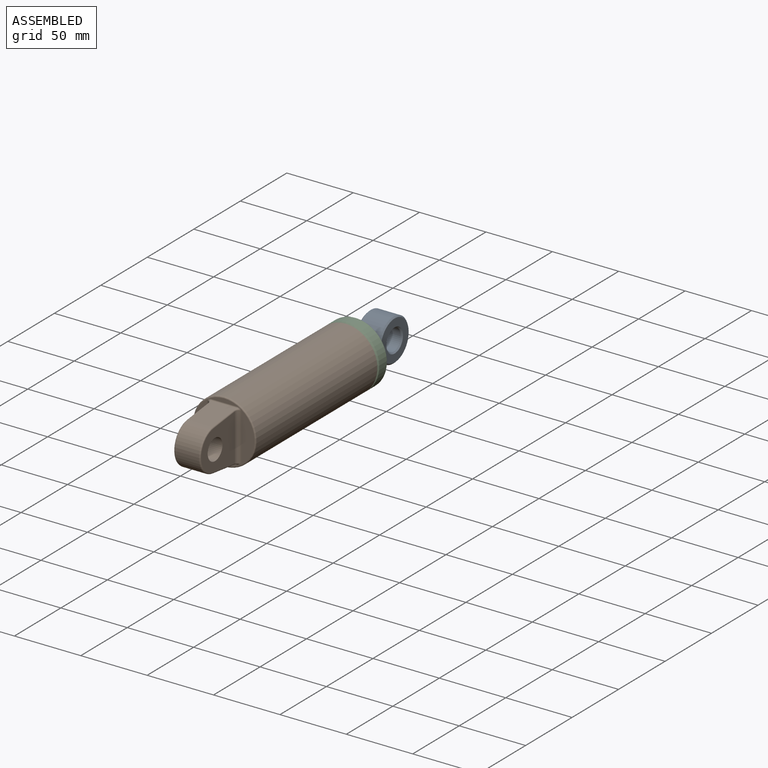
[diagram: assembled view]
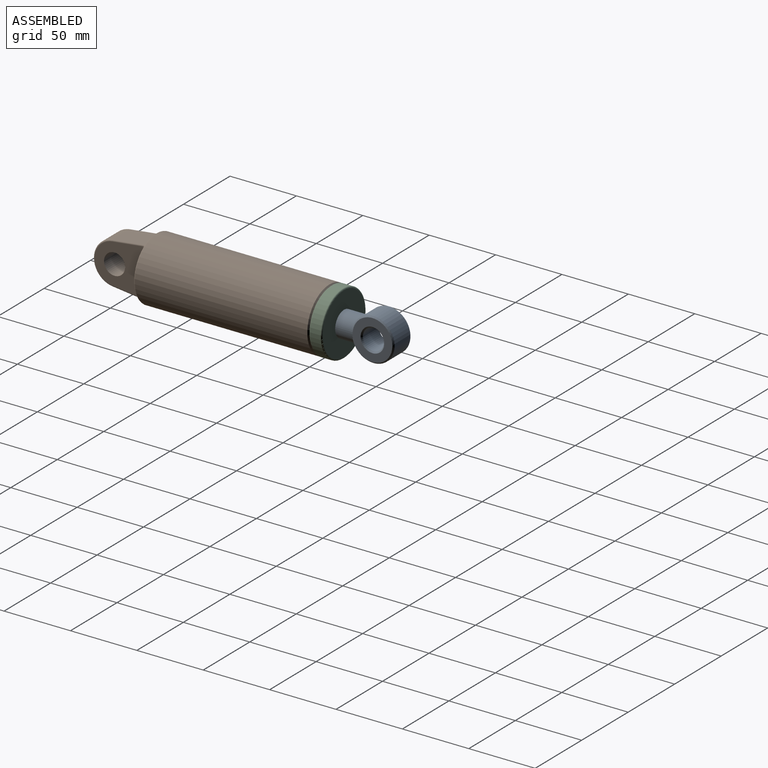
[diagram: assembled view, second angle]
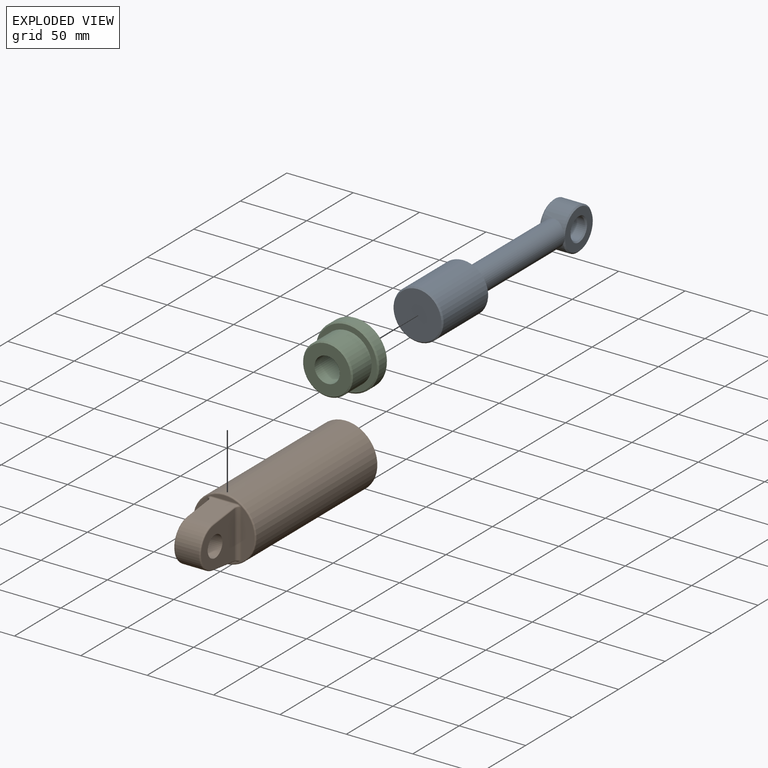
[diagram: exploded view]
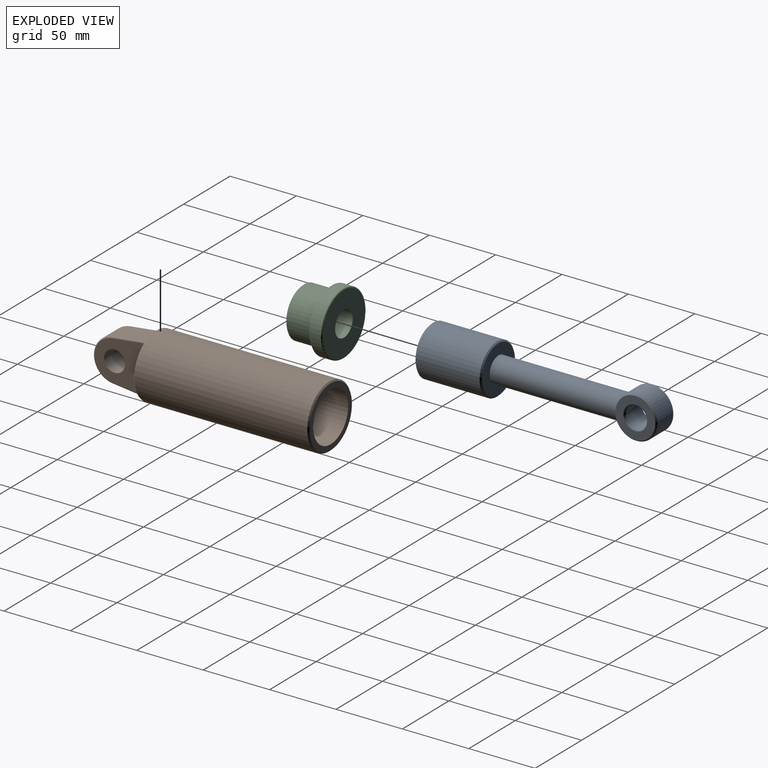
[diagram: exploded view, second angle]
ASSEMBLY  parts=3 mates=2
PART A: 14 faces, bbox 37.6x175.8x37.6 mm
  f0: cylinder r=9.5mm len=96.93mm, axis (0,-1,0), area 5701.5mm2, adj f2,f4,f11,f13
  f1: cylinder r=18.8mm len=48mm, axis (0,-1,0), area 5669.9mm2, adj f8,f9
  f2: plane 35.6x35.6mm, normal (0,1,0), area 711.9mm2, adj f0,f8
  f3: plane 35.6x35.6mm, normal (0,-1,0), area 995.4mm2, adj f9
  f4: cylinder r=16mm len=32mm, axis (-1,0,0), area 1422.5mm2, adj f0,f11,f13
  f5: plane 30x30mm, normal (1,0,0), area 455.8mm2, adj f12,f13
  f6: plane 30x30mm, normal (-1,0,0), area 455.8mm2, adj f10,f11
  f7: cylinder r=7.94mm len=17mm, axis (1,0,0), area 848.1mm2, adj f10,f12
  f8: cone r=18.8mm half-angle=45deg, axis (0,-1,0), area 162.6mm2, adj f1,f2
  f9: cone r=17.8mm half-angle=45deg, axis (0,1,0), area 162.6mm2, adj f1,f3
  f10: cone r=8.94mm half-angle=45deg, axis (-1,0,0), area 75mm2, adj f6,f7
  f11: cone r=16mm half-angle=45deg, axis (1,0,0), area 129.6mm2, adj f0,f4,f6
  f12: cone r=7.94mm half-angle=45deg, axis (1,0,0), area 75mm2, adj f5,f7
  f13: cone r=15mm half-angle=45deg, axis (-1,0,0), area 129.6mm2, adj f0,f4,f5
PART B: 31 faces, bbox 51.5x173.1x51.5 mm
  f0: plane 45.6x45.6mm, normal (0,-1,0), area 607mm2, adj f11,f12,f15,f17,f19,f22,f24,f26
  f1: cylinder r=23.8mm len=129.8mm, axis (0,-1,0), area 19410.3mm2, adj f29,f30
  f2: plane 45.6x45.6mm, normal (0,1,0), area 522.8mm2, adj f3,f30
  f3: cylinder r=18.8mm len=121.8mm, axis (0,1,0), area 14387.5mm2, adj f2,f4
  f4: plane 37.6x37.6mm, normal (0,1,0), area 1110.4mm2, adj f3
  f5: plane 25.03x19.37mm, normal (0,-0.12,0.99), area 454.8mm2, adj f6,f13,f14,f17,f21,f23
  f6: cylinder r=16mm len=31.77mm, axis (-1,0,0), area 835.9mm2, adj f5,f7,f16,f25
  f7: plane 25.03x19.37mm, normal (0,-0.12,-0.99), area 454.8mm2, adj f6,f18,f20,f24,f27,f28
  f8: cylinder r=7.94mm len=20mm, axis (-1,0,0), area 997.8mm2, adj f9,f10
  f9: plane 36x35.26mm, normal (1,0,0), area 843mm2, adj f8,f12,f23,f25,f27
  f10: plane 36x35.26mm, normal (-1,0,0), area 843mm2, adj f8,f11,f14,f16,f18
  f11: cylinder r=3mm len=36.23mm, axis (0,0,1), area 168.4mm2, adj f0,f10,f13,f20
  f12: cylinder r=3mm len=36.23mm, axis (0,0,-1), area 168.4mm2, adj f0,f9,f21,f28
  f13: bspline ~4.7x4mm, area 5.4mm2, adj f5,f11,f14,f15
  f14: cylinder r=1mm len=22.91mm, axis (0,-0.99,-0.12), area 36.1mm2, adj f5,f10,f13,f16
  f15: bspline ~3.99x1.77mm, area 1.8mm2, adj f0,f13,f17
  f16: torus R=15mm, axis (1,0,0), area 71.3mm2, adj f6,f10,f14,f18
  f17: cylinder r=1mm len=19.37mm, axis (1,0,0), area 28.1mm2, adj f0,f5,f15,f19
  f18: cylinder r=1mm len=22.91mm, axis (0,0.99,-0.12), area 36.1mm2, adj f7,f10,f16,f20
  f19: bspline ~3.99x1.77mm, area 1.8mm2, adj f0,f17,f21
  f20: bspline ~4.7x4.17mm, area 5.4mm2, adj f7,f11,f18,f22
  f21: bspline ~4.7x4.7mm, area 5.4mm2, adj f5,f12,f19,f23
  f22: bspline ~3.99x1.77mm, area 1.8mm2, adj f0,f20,f24
  f23: cylinder r=1mm len=22.91mm, axis (0,0.99,0.12), area 36.1mm2, adj f5,f9,f21,f25
  f24: cylinder r=1mm len=19.37mm, axis (-1,0,0), area 28.1mm2, adj f0,f7,f22,f26
  f25: torus R=15mm, axis (1,0,0), area 71.3mm2, adj f6,f9,f23,f27
  f26: bspline ~3.99x1.77mm, area 1.8mm2, adj f0,f24,f28
  f27: cylinder r=1mm len=22.91mm, axis (0,-0.99,0.12), area 36.1mm2, adj f7,f9,f25,f28
  f28: bspline ~4x4mm, area 5.4mm2, adj f7,f12,f26,f27
  f29: torus R=22.8mm, axis (0,-1,0), area 231.3mm2, adj f0,f1
  f30: cone r=23.8mm half-angle=45deg, axis (0,-1,0), area 207mm2, adj f1,f2
PART C: 9 faces, bbox 51.5x31x51.5 mm
  f0: cylinder r=23.8mm len=47.6mm, axis (0,1,0), area 1196.3mm2, adj f5,f6
  f1: plane 45.6x45.6mm, normal (0,-1,0), area 522.8mm2, adj f3,f5
  f2: plane 45.6x45.6mm, normal (0,1,0), area 1349.6mm2, adj f6,f8
  f3: cylinder r=18.8mm len=37.6mm, axis (0,1,0), area 2362.5mm2, adj f1,f7
  f4: plane 35.6x35.6mm, normal (0,-1,0), area 711.9mm2, adj f7,f8
  f5: cone r=22.8mm half-angle=45deg, axis (0,1,0), area 207mm2, adj f0,f1
  f6: torus R=22.8mm, axis (0,-1,0), area 231.3mm2, adj f0,f2
  f7: cone r=17.8mm half-angle=45deg, axis (0,1,0), area 162.6mm2, adj f3,f4
  f8: cylinder r=9.5mm len=31mm, axis (0,1,0), area 1850.4mm2, adj f2,f4
PLACE A t=(0.04,-35.71,0.1)mm
PLACE B t=(0.04,-45.81,0.1)mm fixed
PLACE C t=(0.04,95.99,0.1)mm
MATE slider A.f1 <-> B.f1  axis (0,-1,0) through (0.04,-35.71,0.1)mm
MATE fastened B.f3 <-> C.f3  axis (0,1,0) through (0.04,85.99,0.1)mm
